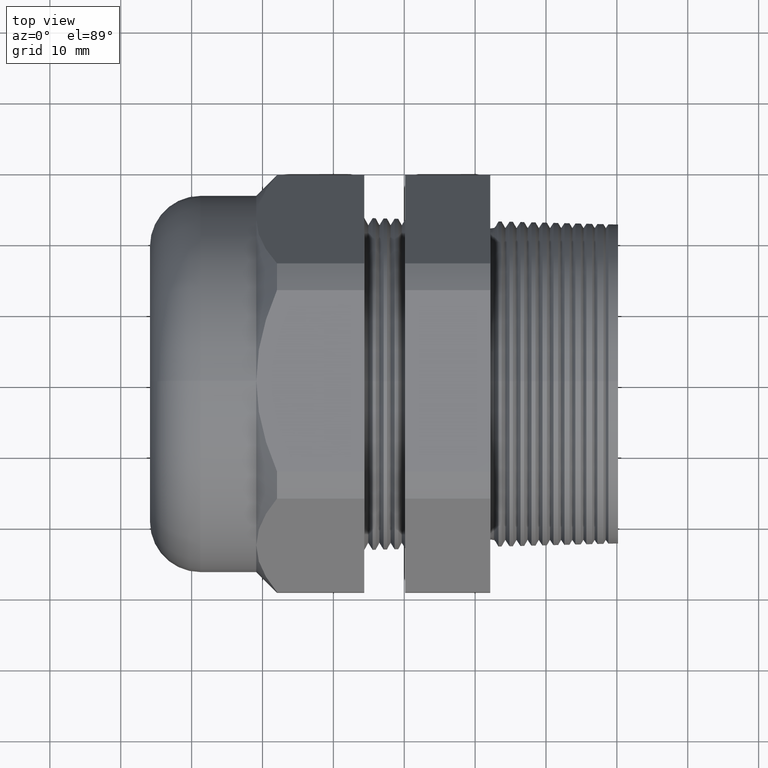
[diagram: clean part render]
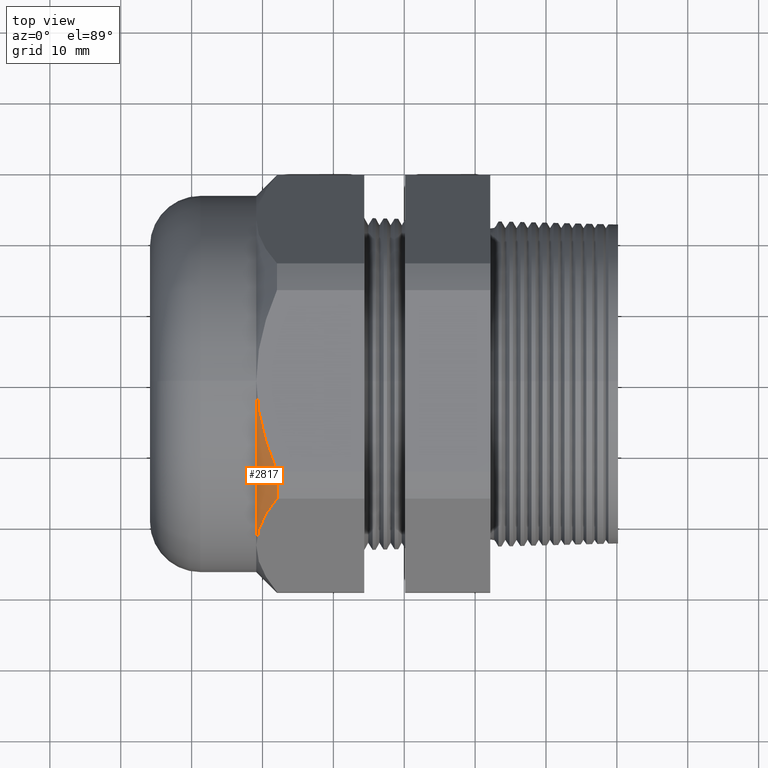
[diagram: same view with one face highlighted and labeled with its STEP entity id]
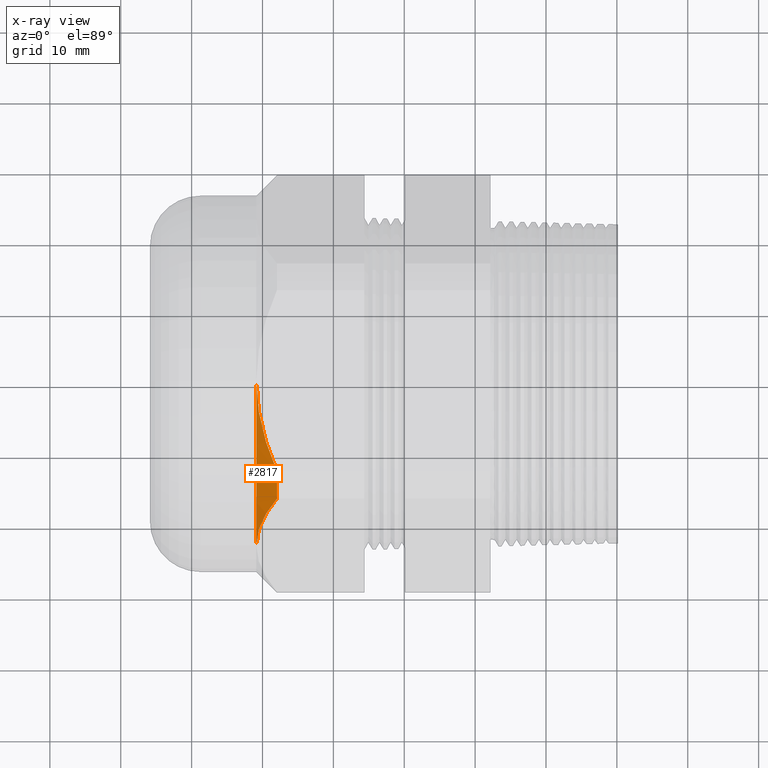
[diagram: x-ray of the same camera — body ghosted, the highlighted face saturated]
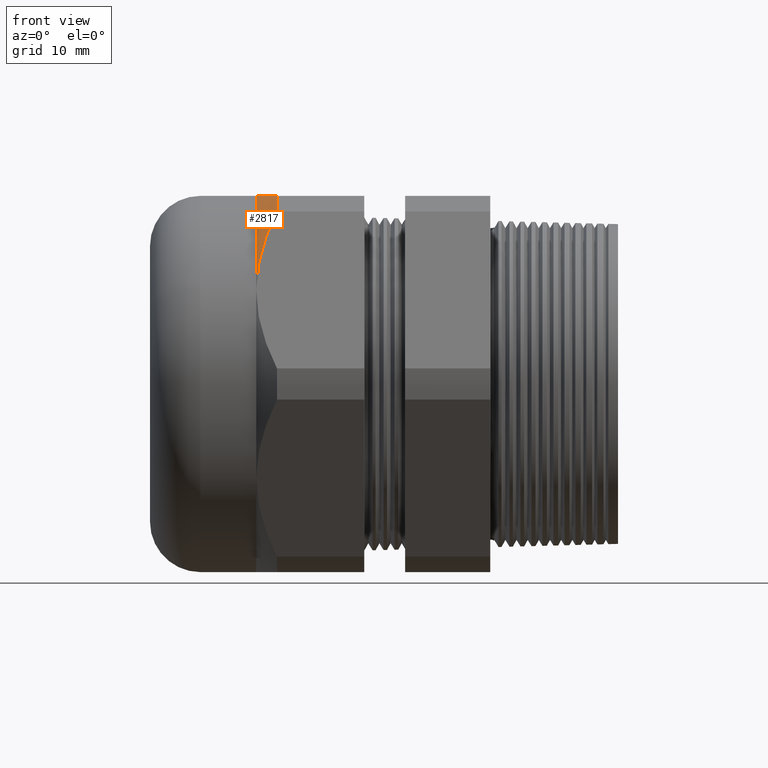
[diagram: same view with one face highlighted and labeled with its STEP entity id]
A machine part, top view. The second image highlights one B-rep face of the part: STEP entity #2817.
The next image is the same camera in x-ray: the body ghosted, the highlighted face saturated — about 0% of this face is hidden behind the body in this view.
A second angle (front view) of the same face is appended — the face is thin or edge-on in the first view.
In plain terms, the highlighted conical surface has half-angle 45 deg.
Its self-contained STEP definition (entity closure, byte-faithful):
#713 = DIRECTION ( 'NONE',  ( 0.0000000000000000000, 0.0000000000000000000, 1.000000000000000000 ) ) ;
#714 = DIRECTION ( 'NONE',  ( 1.000000000000000000, 0.0000000000000000000, 0.0000000000000000000 ) ) ;
#715 = AXIS2_PLACEMENT_3D ( 'NONE', #723, #714, #713 ) ;
#717 = CONICAL_SURFACE ( 'NONE', #715, 1.044999999999999500, 0.7853981633974501700 ) ;
#718 = FACE_OUTER_BOUND ( 'NONE', #2818, .T. ) ;
#723 = CARTESIAN_POINT ( 'NONE',  ( -1.609449999999999400, 0.0000000000000000000, 0.0000000000000000000 ) ) ;
#832 = CARTESIAN_POINT ( 'NONE',  ( -1.609449999999999400, 0.0000000000000000000, 1.044999999999999700 ) ) ;
#1318 = CARTESIAN_POINT ( 'NONE',  ( -1.609449999999999400, -0.9049965469547385200, 0.5224999999999997400 ) ) ;
#1347 = CARTESIAN_POINT ( 'NONE',  ( -1.494499999999999300, -0.5034471198646400800, 1.044999999999999300 ) ) ;
#1380 = CARTESIAN_POINT ( 'NONE',  ( -1.494499999999999300, -0.5034471198646400800, 1.044999999999999300 ) ) ;
#1381 = CARTESIAN_POINT ( 'NONE',  ( -1.511699667379294200, -0.4638188185209417600, 1.044999999999999500 ) ) ;
#1382 = CARTESIAN_POINT ( 'NONE',  ( -1.527583944234739200, -0.4234483023531739900, 1.044999999999999300 ) ) ;
#1383 = CARTESIAN_POINT ( 'NONE',  ( -1.555968422140071100, -0.3407977905260952100, 1.044999999999999500 ) ) ;
#1384 = CARTESIAN_POINT ( 'NONE',  ( -1.568245416907577500, -0.2991342696643452000, 1.044999999999999300 ) ) ;
#1385 = CARTESIAN_POINT ( 'NONE',  ( -1.598371035920961300, -0.1730359448115066100, 1.044999999999999700 ) ) ;
#1386 = CARTESIAN_POINT ( 'NONE',  ( -1.609449999999999400, -0.08745202795108897300, 1.044999999999999700 ) ) ;
#1387 = CARTESIAN_POINT ( 'NONE',  ( -1.609449999999999400, 0.0000000000000000000, 1.044999999999999700 ) ) ;
#1388 = B_SPLINE_CURVE_WITH_KNOTS ( 'NONE', 3,
 ( #1387, #1386, #1385, #1384, #1383, #1382, #1381, #1380 ),
 .UNSPECIFIED., .F., .F.,
 ( 4, 2, 2, 4 ),
 ( 0.03346784229927653900, 0.04001292135983690300, 0.04328546089011708200, 0.04655800042039726100 ),
 .UNSPECIFIED. ) ;
#1397 = CARTESIAN_POINT ( 'NONE',  ( -1.609449999999999400, -0.9049965469547385200, 0.5224999999999997400 ) ) ;
#1398 = CARTESIAN_POINT ( 'NONE',  ( -1.609449999999999200, -0.8941003263552938000, 0.5413728076887161000 ) ) ;
#1399 = CARTESIAN_POINT ( 'NONE',  ( -1.608760443834754900, -0.8831044440390649600, 0.5604182345344735900 ) ) ;
#1400 = CARTESIAN_POINT ( 'NONE',  ( -1.606021667396530200, -0.8612576128887807800, 0.5982580560711432400 ) ) ;
#1401 = CARTESIAN_POINT ( 'NONE',  ( -1.603981402605175100, -0.8504177933294220200, 0.6170331742928317800 ) ) ;
#1402 = CARTESIAN_POINT ( 'NONE',  ( -1.595969452808126700, -0.8181339861334943100, 0.6729503686179362200 ) ) ;
#1403 = CARTESIAN_POINT ( 'NONE',  ( -1.588106022855568100, -0.7969257234379633100, 0.7096841571468633900 ) ) ;
#1404 = CARTESIAN_POINT ( 'NONE',  ( -1.557993050397150200, -0.7341137082222669600, 0.8184777588262390800 ) ) ;
#1405 = CARTESIAN_POINT ( 'NONE',  ( -1.529260837835436600, -0.6933177427239284300, 0.8891384438131887400 ) ) ;
#1406 = CARTESIAN_POINT ( 'NONE',  ( -1.494499999999999300, -0.6532729870224188700, 0.9584979952648864400 ) ) ;
#1409 = B_SPLINE_CURVE_WITH_KNOTS ( 'NONE', 3,
 ( #1406, #1405, #1404, #1403, #1402, #1401, #1400, #1399, #1398, #1397 ),
 .UNSPECIFIED., .F., .F.,
 ( 4, 2, 2, 2, 4 ),
 ( 2.483246824854965000E-007, 0.006562468983848367500, 0.009843579313431306800, 0.01148413447822277600, 0.01312468964301424400 ),
 .UNSPECIFIED. ) ;
#1438 = CARTESIAN_POINT ( 'NONE',  ( -1.494499999999999300, -0.6532729870224188700, 0.9584979952648864400 ) ) ;
#1479 = DIRECTION ( 'NONE',  ( 0.0000000000000000000, 0.0000000000000000000, -1.000000000000000000 ) ) ;
#1480 = DIRECTION ( 'NONE',  ( 1.000000000000000000, 0.0000000000000000000, 0.0000000000000000000 ) ) ;
#1481 = CARTESIAN_POINT ( 'NONE',  ( -1.494499999999999300, 0.0000000000000000000, 0.0000000000000000000 ) ) ;
#1482 = AXIS2_PLACEMENT_3D ( 'NONE', #1481, #1480, #1479 ) ;
#1483 = CIRCLE ( 'NONE', #1482, 1.159950000000000000 ) ;
#1816 = DIRECTION ( 'NONE',  ( 0.0000000000000000000, 0.0000000000000000000, -1.000000000000000000 ) ) ;
#1817 = DIRECTION ( 'NONE',  ( 1.000000000000000000, 0.0000000000000000000, 0.0000000000000000000 ) ) ;
#1818 = CARTESIAN_POINT ( 'NONE',  ( -1.609449999999999400, 0.0000000000000000000, 0.0000000000000000000 ) ) ;
#1819 = AXIS2_PLACEMENT_3D ( 'NONE', #1818, #1817, #1816 ) ;
#1820 = CIRCLE ( 'NONE', #1819, 1.044999999999999900 ) ;
#2817 = ADVANCED_FACE ( 'NONE', ( #718 ), #717, .T. ) ;
#2818 = EDGE_LOOP ( 'NONE', ( #2819, #2820, #2821, #2822 ) ) ;
#2819 = ORIENTED_EDGE ( 'NONE', *, *, #4015, .T. ) ;
#2820 = ORIENTED_EDGE ( 'NONE', *, *, #3805, .F. ) ;
#2821 = ORIENTED_EDGE ( 'NONE', *, *, #3832, .F. ) ;
#2822 = ORIENTED_EDGE ( 'NONE', *, *, #3800, .F. ) ;
#3537 = VERTEX_POINT ( 'NONE', #832 ) ;
#3787 = VERTEX_POINT ( 'NONE', #1318 ) ;
#3791 = VERTEX_POINT ( 'NONE', #1347 ) ;
#3800 = EDGE_CURVE ( 'NONE', #3537, #3791, #1388, .T. ) ;
#3805 = EDGE_CURVE ( 'NONE', #3827, #3787, #1409, .T. ) ;
#3827 = VERTEX_POINT ( 'NONE', #1438 ) ;
#3832 = EDGE_CURVE ( 'NONE', #3791, #3827, #1483, .T. ) ;
#4015 = EDGE_CURVE ( 'NONE', #3537, #3787, #1820, .T. ) ;